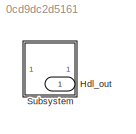
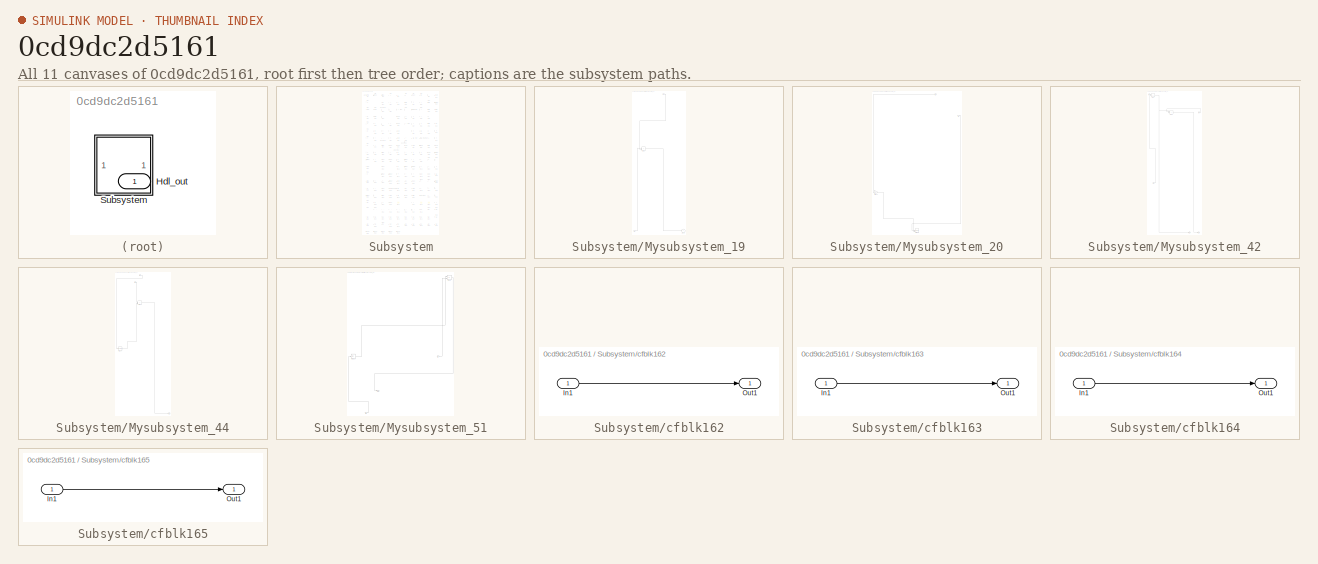
[diagram: thumbnail index - all 11 canvases of the model, root first then tree order]
MODEL slx_0cd9dc2d5161
KIND model
CONFIG AbsTol = auto
CONFIG EnableMultiTasking = off
CONFIG FixedStep = auto
CONFIG MaxStep = auto
CONFIG MinStep = auto
CONFIG RelTol = 1e-3
CONFIG SampleTimeConstraint = Unconstrained
CONFIG SolverName = VariableStepAuto
CONFIG StartTime = 0.0
CONFIG StopTime = 10.0
BLOCK [Outport] Hdl_out
  OutDataTypeStr = uint8
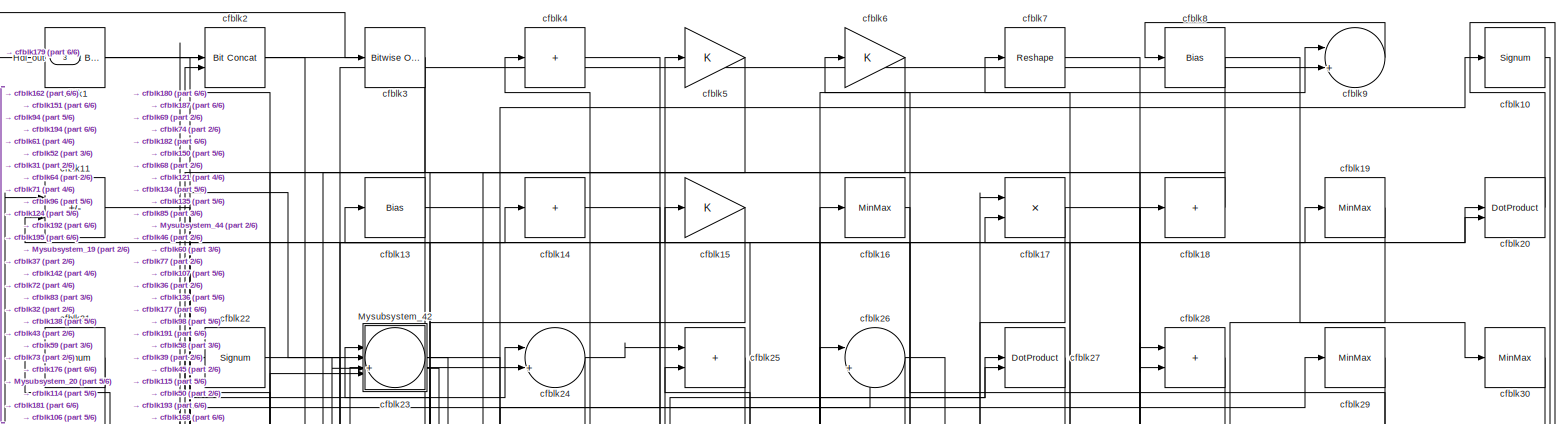
[diagram: Subsystem - part 1/6, full width, top band]
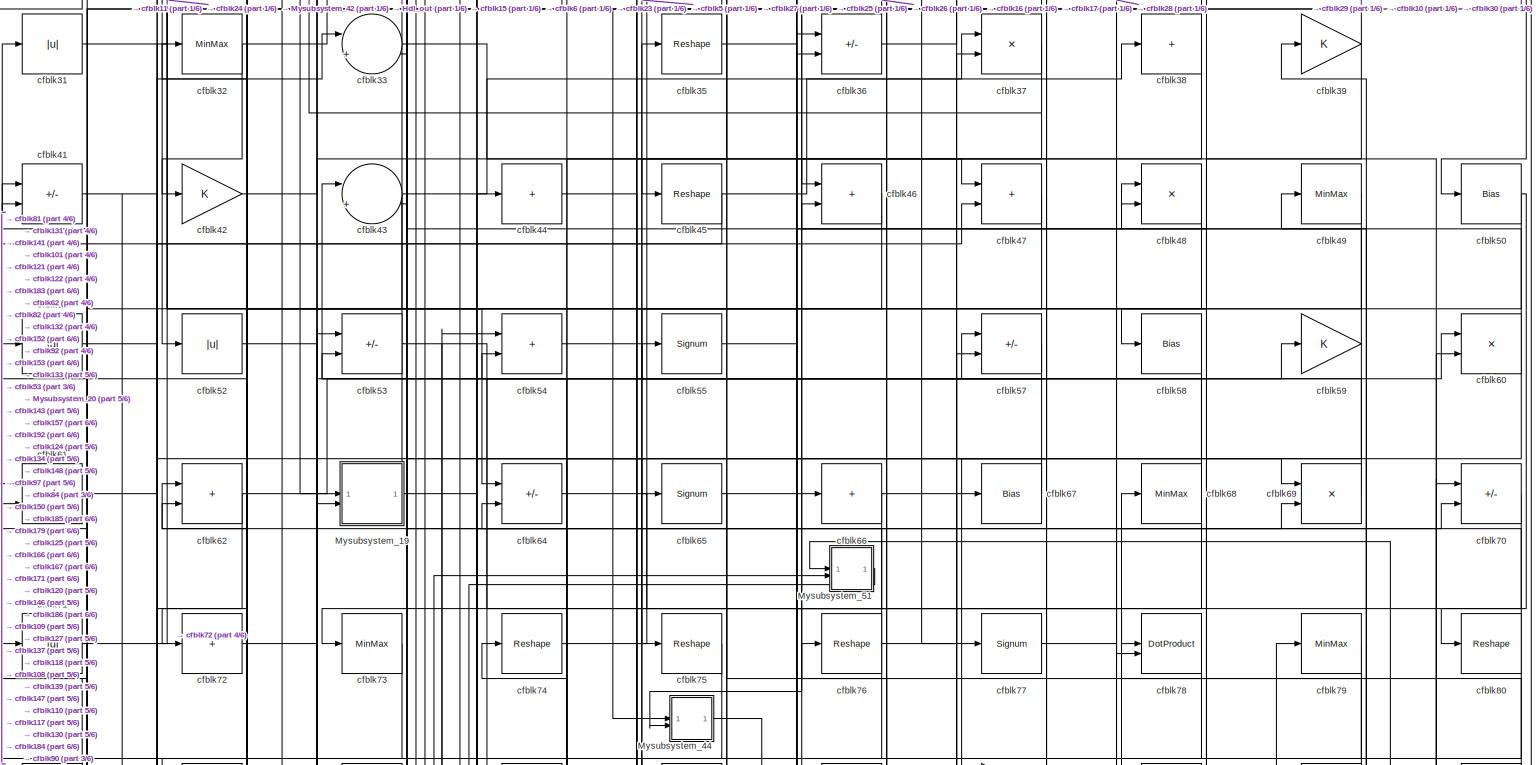
[diagram: Subsystem - part 2/6, full width, top band]
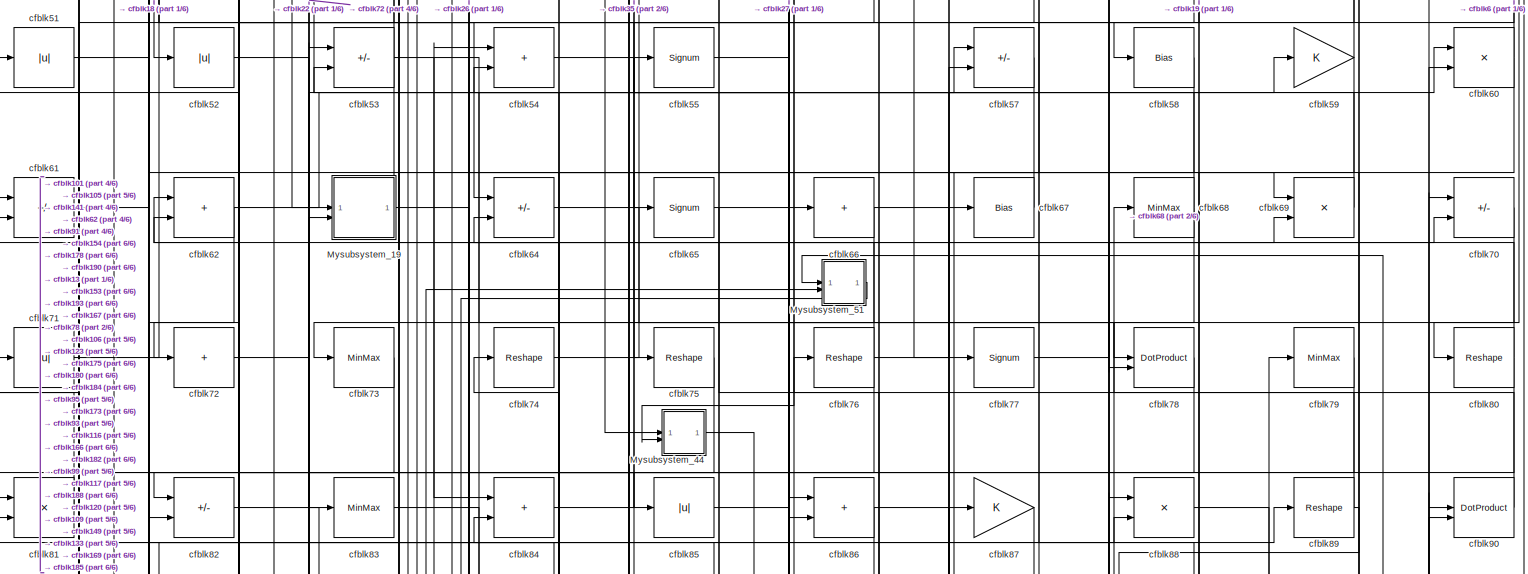
[diagram: Subsystem - part 3/6, full width, middle band]
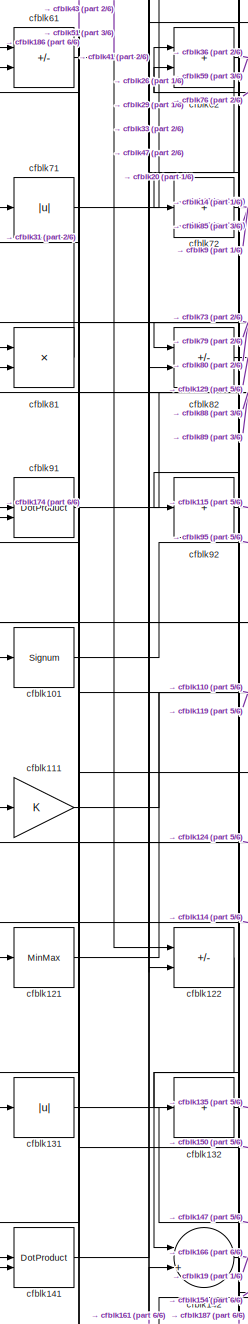
[diagram: Subsystem - part 4/6, middle left region]
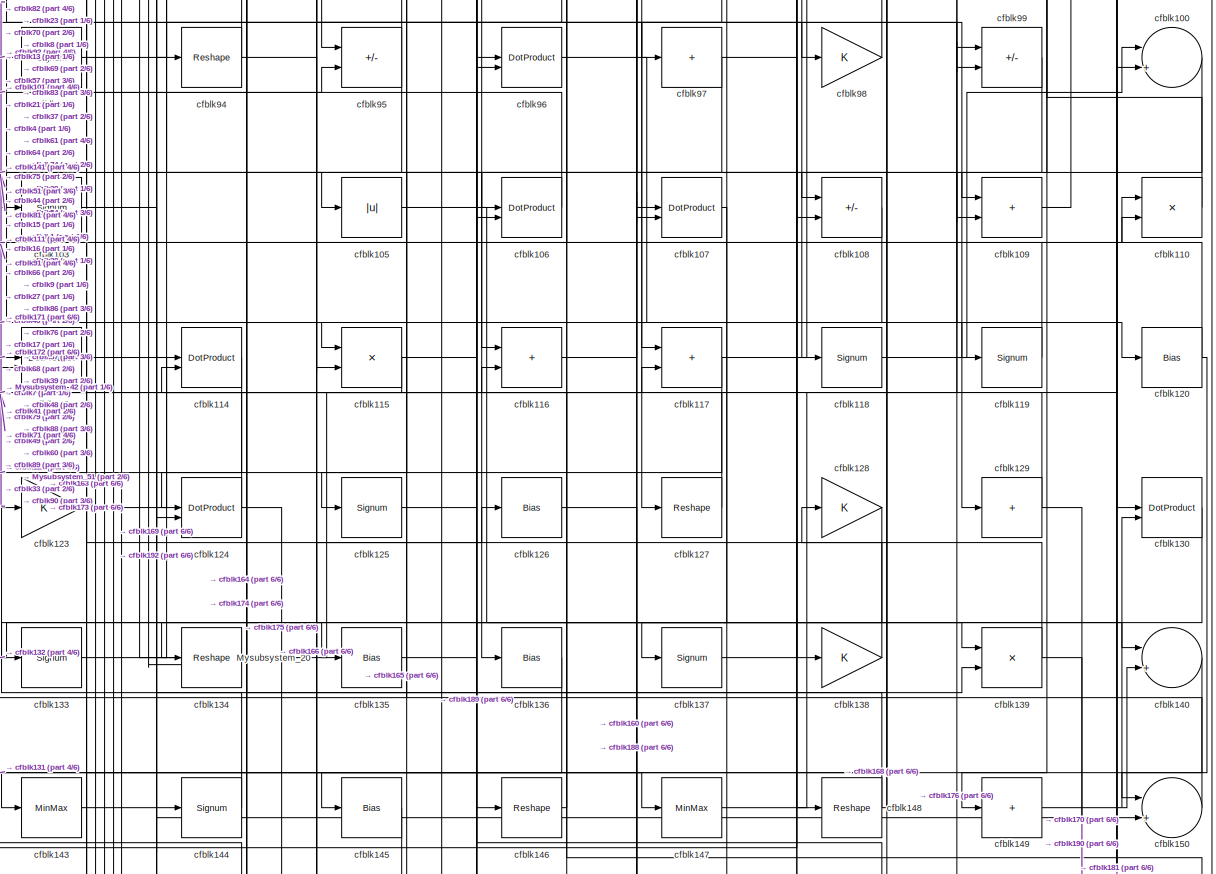
[diagram: Subsystem - part 5/6, full width, middle band]
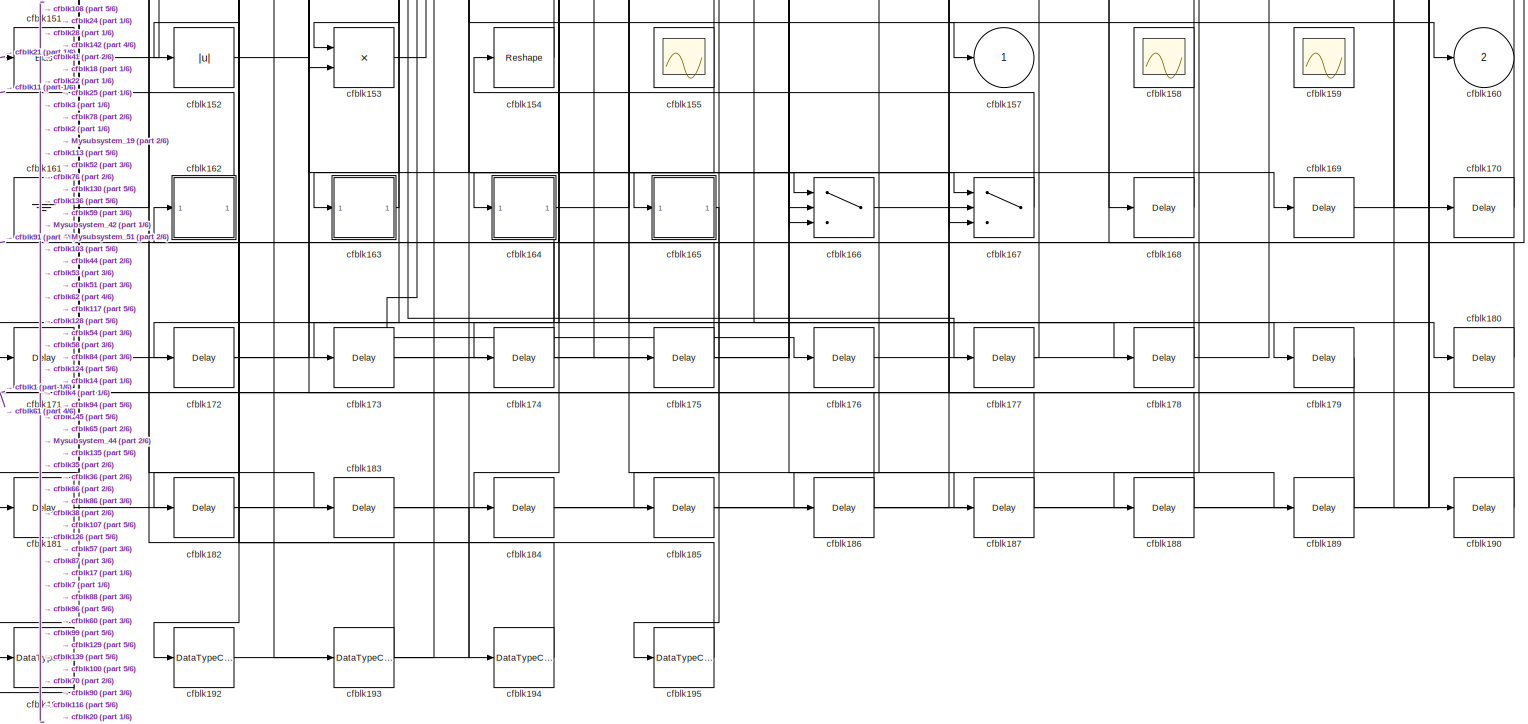
[diagram: Subsystem - part 6/6, full width, bottom band]
BLOCK [SubSystem] Subsystem
BLOCK [Outport] Subsystem/Hdl_out
  OutDataTypeStr = uint8
  Port = 3
BLOCK [SubSystem] Subsystem/Mysubsystem_19
  RTWFcnName = Mysubsystem_19
  RTWFcnNameOpts = User specified
  RTWFileNameOpts = Use function name
  RTWSystemCode = Reusable function
  TreatAsAtomicUnit = on
BLOCK [Inport] Subsystem/Mysubsystem_19/In1
BLOCK [Inport] Subsystem/Mysubsystem_19/In2
  Port = 2
BLOCK [Outport] Subsystem/Mysubsystem_19/cfblk157
  VectorParamsAs1DForOutWhenUnconnected = off
BLOCK [Sum] Subsystem/Mysubsystem_19/cfblk63
  IconShape = rectangular
BLOCK [SubSystem] Subsystem/Mysubsystem_20
  RTWFcnName = Mysubsystem_20
  RTWFcnNameOpts = User specified
  RTWFileNameOpts = Use function name
  RTWSystemCode = Reusable function
  TreatAsAtomicUnit = on
BLOCK [Inport] Subsystem/Mysubsystem_20/In1
BLOCK [Inport] Subsystem/Mysubsystem_20/In2
  Port = 2
BLOCK [Gain] Subsystem/Mysubsystem_20/cfblk112
BLOCK [Record] Subsystem/Mysubsystem_20/cfblk156
  CompatibilityTag = XY
  FileSettingsInternal = {"entries":[{"content":{"excelSettings":{"content":{},"type":"Streamout.ExcelSettings"}},"type":"Streamout.FileSettingStorage","uuid":""}],"packageUris":["http:\/\/schema.mathworks.com\/mf0\/streamout_blocks\/R2020a"],"version":"1.0"}
  Layout = [1 1]
  SignalsInternal = {"entries":[{"content":{},"type":"RecordBlkView.InputSignals","uuid":""}],"packageUris":["http:\/\/schema.mathworks.com\/mf0\/streamout_blocks\/R2020a"],"version":"1.0"}
  VisualizationBindings = {"xyplotplugin":{"info":[{"series":[],"subplotID":1}]}}
  st = -1
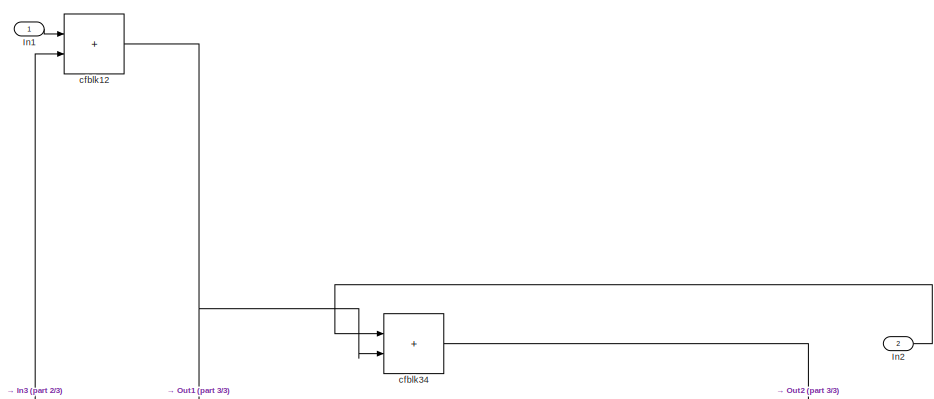
[diagram: Subsystem/Mysubsystem_42 - part 1/3, full width, top band]
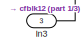
[diagram: Subsystem/Mysubsystem_42 - part 2/3, middle left region]
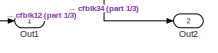
[diagram: Subsystem/Mysubsystem_42 - part 3/3, bottom right region]
BLOCK [SubSystem] Subsystem/Mysubsystem_42
  RTWFcnName = Mysubsystem_42
  RTWFcnNameOpts = User specified
  RTWFileNameOpts = Use function name
  RTWSystemCode = Reusable function
  TreatAsAtomicUnit = on
BLOCK [Inport] Subsystem/Mysubsystem_42/In1
BLOCK [Inport] Subsystem/Mysubsystem_42/In2
  Port = 2
BLOCK [Inport] Subsystem/Mysubsystem_42/In3
  Port = 3
BLOCK [Outport] Subsystem/Mysubsystem_42/Out1
BLOCK [Outport] Subsystem/Mysubsystem_42/Out2
  Port = 2
BLOCK [Sum] Subsystem/Mysubsystem_42/cfblk12
  IconShape = rectangular
BLOCK [Sum] Subsystem/Mysubsystem_42/cfblk34
  IconShape = rectangular
BLOCK [SubSystem] Subsystem/Mysubsystem_44
  RTWFcnName = Mysubsystem_44
  RTWFcnNameOpts = User specified
  RTWFileNameOpts = Use function name
  RTWSystemCode = Reusable function
  TreatAsAtomicUnit = on
BLOCK [Inport] Subsystem/Mysubsystem_44/In1
BLOCK [Inport] Subsystem/Mysubsystem_44/In2
  Port = 2
BLOCK [Outport] Subsystem/Mysubsystem_44/Out1
BLOCK [Reshape] Subsystem/Mysubsystem_44/cfblk104
BLOCK [Sum] Subsystem/Mysubsystem_44/cfblk56
  IconShape = rectangular
BLOCK [SubSystem] Subsystem/Mysubsystem_51
  RTWFcnName = Mysubsystem_51
  RTWFcnNameOpts = User specified
  RTWFileNameOpts = Use function name
  RTWSystemCode = Reusable function
  TreatAsAtomicUnit = on
BLOCK [Inport] Subsystem/Mysubsystem_51/In1
BLOCK [Inport] Subsystem/Mysubsystem_51/In2
  Port = 2
BLOCK [Outport] Subsystem/Mysubsystem_51/Out1
BLOCK [Abs] Subsystem/Mysubsystem_51/cfblk102
  SaturateOnIntegerOverflow = off
BLOCK [Sum] Subsystem/Mysubsystem_51/cfblk40
  IconShape = rectangular
  Inputs = +-
BLOCK [Reference] Subsystem/cfblk1  REF=simulink/Logic and Bit
Operations/Extract Bits
  LibrarySourceBlock = hdlsllib/Logic and Bit\nOperations/Extract Bits
  SourceBlock = simulink/Logic and Bit\nOperations/Extract Bits
  SourceType = Extract Bits
BLOCK [Signum] Subsystem/cfblk10
BLOCK [Sum] Subsystem/cfblk100
  Inputs = |++
  OutDataTypeStr = uint8
BLOCK [Signum] Subsystem/cfblk101
BLOCK [Signum] Subsystem/cfblk103
BLOCK [Abs] Subsystem/cfblk105
  OutDataTypeStr = uint8
  SaturateOnIntegerOverflow = off
BLOCK [DotProduct] Subsystem/cfblk106
  OutDataTypeStr = uint8
BLOCK [DotProduct] Subsystem/cfblk107
  OutDataTypeStr = uint8
BLOCK [Sum] Subsystem/cfblk108
  IconShape = rectangular
  Inputs = +-
  OutDataTypeStr = uint8
BLOCK [Sum] Subsystem/cfblk109
  IconShape = rectangular
  OutDataTypeStr = uint8
BLOCK [Sum] Subsystem/cfblk11
  IconShape = rectangular
  Inputs = +-
  OutDataTypeStr = uint8
BLOCK [Product] Subsystem/cfblk110
  Inputs = */
  OutDataTypeStr = uint8
  RndMeth = Zero
  SaturateOnIntegerOverflow = on
BLOCK [Gain] Subsystem/cfblk111
  OutDataTypeStr = uint8
BLOCK [DotProduct] Subsystem/cfblk113
  OutDataTypeStr = uint8
BLOCK [DotProduct] Subsystem/cfblk114
  OutDataTypeStr = uint8
BLOCK [Product] Subsystem/cfblk115
  Inputs = */
  OutDataTypeStr = uint8
  RndMeth = Zero
  SaturateOnIntegerOverflow = on
BLOCK [Sum] Subsystem/cfblk116
  IconShape = rectangular
  OutDataTypeStr = uint8
BLOCK [Sum] Subsystem/cfblk117
  IconShape = rectangular
  OutDataTypeStr = uint8
BLOCK [Signum] Subsystem/cfblk118
BLOCK [Signum] Subsystem/cfblk119
BLOCK [Bias] Subsystem/cfblk120
  Bias = 0.0
  SaturateOnIntegerOverflow = off
BLOCK [MinMax] Subsystem/cfblk121
  OutDataTypeStr = uint8
BLOCK [Sum] Subsystem/cfblk122
  IconShape = rectangular
  Inputs = +-
  OutDataTypeStr = uint8
BLOCK [Gain] Subsystem/cfblk123
  OutDataTypeStr = uint8
BLOCK [DotProduct] Subsystem/cfblk124
  OutDataTypeStr = uint8
BLOCK [Signum] Subsystem/cfblk125
BLOCK [Bias] Subsystem/cfblk126
  Bias = 0.0
  SaturateOnIntegerOverflow = off
BLOCK [Reshape] Subsystem/cfblk127
BLOCK [Gain] Subsystem/cfblk128
  OutDataTypeStr = uint8
BLOCK [Sum] Subsystem/cfblk129
  IconShape = rectangular
  Inputs = +
  OutDataTypeStr = uint8
BLOCK [Bias] Subsystem/cfblk13
  Bias = 0.0
  SaturateOnIntegerOverflow = off
BLOCK [DotProduct] Subsystem/cfblk130
  OutDataTypeStr = uint8
BLOCK [Abs] Subsystem/cfblk131
  OutDataTypeStr = uint8
  SaturateOnIntegerOverflow = off
BLOCK [Sum] Subsystem/cfblk132
  IconShape = rectangular
  Inputs = +
  OutDataTypeStr = uint8
BLOCK [Signum] Subsystem/cfblk133
BLOCK [Reshape] Subsystem/cfblk134
BLOCK [Bias] Subsystem/cfblk135
  Bias = 0.0
  SaturateOnIntegerOverflow = off
BLOCK [Bias] Subsystem/cfblk136
  Bias = 0.0
  SaturateOnIntegerOverflow = off
BLOCK [Signum] Subsystem/cfblk137
BLOCK [Gain] Subsystem/cfblk138
  OutDataTypeStr = uint8
BLOCK [Product] Subsystem/cfblk139
  Inputs = */
  OutDataTypeStr = uint8
  RndMeth = Zero
  SaturateOnIntegerOverflow = on
BLOCK [Sum] Subsystem/cfblk14
  IconShape = rectangular
  Inputs = +
  OutDataTypeStr = uint8
BLOCK [Sum] Subsystem/cfblk140
  Inputs = |++
  OutDataTypeStr = uint8
BLOCK [DotProduct] Subsystem/cfblk141
  OutDataTypeStr = uint8
BLOCK [Sum] Subsystem/cfblk142
  Inputs = |++
  OutDataTypeStr = uint8
BLOCK [MinMax] Subsystem/cfblk143
  OutDataTypeStr = uint8
BLOCK [Signum] Subsystem/cfblk144
BLOCK [Bias] Subsystem/cfblk145
  Bias = 0.0
  SaturateOnIntegerOverflow = off
BLOCK [Reshape] Subsystem/cfblk146
BLOCK [MinMax] Subsystem/cfblk147
  OutDataTypeStr = uint8
BLOCK [Reshape] Subsystem/cfblk148
BLOCK [Sum] Subsystem/cfblk149
  IconShape = rectangular
  Inputs = +
  OutDataTypeStr = uint8
BLOCK [Gain] Subsystem/cfblk15
  OutDataTypeStr = uint8
BLOCK [Sum] Subsystem/cfblk150
  Inputs = |++
  OutDataTypeStr = uint8
BLOCK [Bias] Subsystem/cfblk151
  Bias = 0.0
  SaturateOnIntegerOverflow = off
BLOCK [Abs] Subsystem/cfblk152
  OutDataTypeStr = uint8
  SaturateOnIntegerOverflow = off
BLOCK [Product] Subsystem/cfblk153
  Inputs = */
  OutDataTypeStr = uint8
  RndMeth = Zero
  SaturateOnIntegerOverflow = on
BLOCK [Reshape] Subsystem/cfblk154
BLOCK [Scope] Subsystem/cfblk155
  Floating = on
  NumInputPorts = 1
  ScopeSpecificationString = Simulink.scopes.TimeScopeBlockCfg('CurrentConfiguration', extmgr.ConfigurationSet(extmgr.Configuration('Core','General UI',true,'FigureColor',[0.156862745098039 0.156862745098039 0.156862745098039]),extmgr.Configuration('Core','Source UI',true),extmgr.Configuration('Sources','WiredSimulink',true,'DataLoggingVariableName','ScopeData1','DataLoggingSaveFormat','StructureWithTime','DataLoggingLimitDat...<+2713ch>
BLOCK [Outport] Subsystem/cfblk157
  OutDataTypeStr = uint8
  VectorParamsAs1DForOutWhenUnconnected = off
BLOCK [Scope] Subsystem/cfblk158
  Floating = on
  NumInputPorts = 1
  ScopeSpecificationString = Simulink.scopes.TimeScopeBlockCfg('CurrentConfiguration', extmgr.ConfigurationSet(extmgr.Configuration('Core','General UI',true,'FigureColor',[0.156862745098039 0.156862745098039 0.156862745098039]),extmgr.Configuration('Core','Source UI',true),extmgr.Configuration('Sources','WiredSimulink',true,'DataLoggingVariableName','ScopeData2','DataLoggingSaveFormat','StructureWithTime','DataLoggingLimitDat...<+2713ch>
BLOCK [Scope] Subsystem/cfblk159
  Floating = on
  NumInputPorts = 1
  ScopeSpecificationString = Simulink.scopes.TimeScopeBlockCfg('CurrentConfiguration', extmgr.ConfigurationSet(extmgr.Configuration('Core','General UI',true,'FigureColor',[0.156862745098039 0.156862745098039 0.156862745098039]),extmgr.Configuration('Core','Source UI',true),extmgr.Configuration('Sources','WiredSimulink',true,'DataLoggingSaveFormat','StructureWithTime','DataLoggingLimitDataPoints',true,'DataLoggingDecimation','...<+2674ch>
BLOCK [MinMax] Subsystem/cfblk16
  OutDataTypeStr = uint8
BLOCK [Outport] Subsystem/cfblk160
  OutDataTypeStr = uint8
  Port = 2
  VectorParamsAs1DForOutWhenUnconnected = off
BLOCK [Ground] Subsystem/cfblk161
BLOCK [SubSystem] Subsystem/cfblk162
  LibrarySourceBlock = hdlsllib/Ports &\nSubsystems/Subsystem
BLOCK [Inport] Subsystem/cfblk162/In1
BLOCK [Outport] Subsystem/cfblk162/Out1
BLOCK [SubSystem] Subsystem/cfblk163
  LibrarySourceBlock = hdlsllib/Ports &\nSubsystems/Subsystem
BLOCK [Inport] Subsystem/cfblk163/In1
BLOCK [Outport] Subsystem/cfblk163/Out1
BLOCK [SubSystem] Subsystem/cfblk164
  LibrarySourceBlock = hdlsllib/Ports &\nSubsystems/Subsystem
BLOCK [Inport] Subsystem/cfblk164/In1
BLOCK [Outport] Subsystem/cfblk164/Out1
BLOCK [SubSystem] Subsystem/cfblk165
  LibrarySourceBlock = hdlsllib/Ports &\nSubsystems/Subsystem
BLOCK [Inport] Subsystem/cfblk165/In1
BLOCK [Outport] Subsystem/cfblk165/Out1
BLOCK [Switch] Subsystem/cfblk166
  InputSameDT = off
  OutDataTypeStr = uint8
  SaturateOnIntegerOverflow = off
BLOCK [Switch] Subsystem/cfblk167
  InputSameDT = off
  OutDataTypeStr = uint8
  SaturateOnIntegerOverflow = off
BLOCK [Delay] Subsystem/cfblk168
  InputPortMap = u0
  SampleTime = 1
BLOCK [Delay] Subsystem/cfblk169
  InputPortMap = u0
  SampleTime = 1
BLOCK [Product] Subsystem/cfblk17
  Inputs = */
  OutDataTypeStr = uint8
  RndMeth = Zero
  SaturateOnIntegerOverflow = on
BLOCK [Delay] Subsystem/cfblk170
  InputPortMap = u0
  SampleTime = 1
BLOCK [Delay] Subsystem/cfblk171
  InputPortMap = u0
  SampleTime = 1
BLOCK [Delay] Subsystem/cfblk172
  InputPortMap = u0
  SampleTime = 1
BLOCK [Delay] Subsystem/cfblk173
  InputPortMap = u0
  SampleTime = 1
BLOCK [Delay] Subsystem/cfblk174
  InputPortMap = u0
  SampleTime = 1
BLOCK [Delay] Subsystem/cfblk175
  InputPortMap = u0
  SampleTime = 1
BLOCK [Delay] Subsystem/cfblk176
  InputPortMap = u0
  SampleTime = 1
BLOCK [Delay] Subsystem/cfblk177
  InputPortMap = u0
  SampleTime = 1
BLOCK [Delay] Subsystem/cfblk178
  InputPortMap = u0
  SampleTime = 1
BLOCK [Delay] Subsystem/cfblk179
  InputPortMap = u0
  SampleTime = 1
BLOCK [Sum] Subsystem/cfblk18
  IconShape = rectangular
  Inputs = +
  OutDataTypeStr = uint8
BLOCK [Delay] Subsystem/cfblk180
  InputPortMap = u0
  SampleTime = 1
BLOCK [Delay] Subsystem/cfblk181
  InputPortMap = u0
  SampleTime = 1
BLOCK [Delay] Subsystem/cfblk182
  InputPortMap = u0
  SampleTime = 1
BLOCK [Delay] Subsystem/cfblk183
  InputPortMap = u0
  SampleTime = 1
BLOCK [Delay] Subsystem/cfblk184
  InputPortMap = u0
  SampleTime = 1
BLOCK [Delay] Subsystem/cfblk185
  InputPortMap = u0
  SampleTime = 1
BLOCK [Delay] Subsystem/cfblk186
  InputPortMap = u0
  SampleTime = 1
BLOCK [Delay] Subsystem/cfblk187
  InputPortMap = u0
  SampleTime = 1
BLOCK [Delay] Subsystem/cfblk188
  InputPortMap = u0
  SampleTime = 1
BLOCK [Delay] Subsystem/cfblk189
  InputPortMap = u0
  SampleTime = 1
BLOCK [MinMax] Subsystem/cfblk19
  OutDataTypeStr = uint8
BLOCK [Delay] Subsystem/cfblk190
  InputPortMap = u0
  SampleTime = 1
BLOCK [DataTypeConversion] Subsystem/cfblk191
  OutDataTypeStr = uint8
  RndMeth = Floor
  SaturateOnIntegerOverflow = off
BLOCK [DataTypeConversion] Subsystem/cfblk192
  OutDataTypeStr = uint8
  RndMeth = Floor
  SaturateOnIntegerOverflow = off
BLOCK [DataTypeConversion] Subsystem/cfblk193
  OutDataTypeStr = uint8
  RndMeth = Floor
  SaturateOnIntegerOverflow = off
BLOCK [DataTypeConversion] Subsystem/cfblk194
  OutDataTypeStr = uint8
  RndMeth = Floor
  SaturateOnIntegerOverflow = off
BLOCK [DataTypeConversion] Subsystem/cfblk195
  OutDataTypeStr = uint8
  RndMeth = Floor
  SaturateOnIntegerOverflow = off
BLOCK [Reference] Subsystem/cfblk2  REF=hdlsllib/Logic and Bit
Operations/Bit Concat
  SourceBlock = hdlsllib/Logic and Bit\nOperations/Bit Concat
  SourceType = Bit Concat
BLOCK [DotProduct] Subsystem/cfblk20
  OutDataTypeStr = uint8
BLOCK [Signum] Subsystem/cfblk21
BLOCK [Signum] Subsystem/cfblk22
BLOCK [Sum] Subsystem/cfblk23
  Inputs = |++
  OutDataTypeStr = uint8
BLOCK [Sum] Subsystem/cfblk24
  Inputs = |++
  OutDataTypeStr = uint8
BLOCK [Sum] Subsystem/cfblk25
  IconShape = rectangular
  OutDataTypeStr = uint8
BLOCK [Sum] Subsystem/cfblk26
  Inputs = |++
  OutDataTypeStr = uint8
BLOCK [DotProduct] Subsystem/cfblk27
  OutDataTypeStr = uint8
BLOCK [Sum] Subsystem/cfblk28
  IconShape = rectangular
  OutDataTypeStr = uint8
BLOCK [MinMax] Subsystem/cfblk29
  OutDataTypeStr = uint8
BLOCK [Reference] Subsystem/cfblk3  REF=simulink/Logic and Bit
Operations/Bitwise
Operator
  LibrarySourceBlock = hdlsllib/Logic and Bit\nOperations/Bitwise\nOperator
  SourceBlock = simulink/Logic and Bit\nOperations/Bitwise\nOperator
  SourceType = Bitwise Operator
BLOCK [MinMax] Subsystem/cfblk30
  OutDataTypeStr = uint8
BLOCK [Abs] Subsystem/cfblk31
  OutDataTypeStr = uint8
  SaturateOnIntegerOverflow = off
BLOCK [MinMax] Subsystem/cfblk32
  OutDataTypeStr = uint8
BLOCK [Sum] Subsystem/cfblk33
  Inputs = |++
  OutDataTypeStr = uint8
BLOCK [Reshape] Subsystem/cfblk35
BLOCK [Sum] Subsystem/cfblk36
  IconShape = rectangular
  Inputs = +-
  OutDataTypeStr = uint8
BLOCK [Product] Subsystem/cfblk37
  Inputs = */
  OutDataTypeStr = uint8
  RndMeth = Zero
  SaturateOnIntegerOverflow = on
BLOCK [Sum] Subsystem/cfblk38
  IconShape = rectangular
  Inputs = +
  OutDataTypeStr = uint8
BLOCK [Gain] Subsystem/cfblk39
  OutDataTypeStr = uint8
BLOCK [Sum] Subsystem/cfblk4
  IconShape = rectangular
  Inputs = +
  OutDataTypeStr = uint8
BLOCK [Sum] Subsystem/cfblk41
  IconShape = rectangular
  Inputs = +-
  OutDataTypeStr = uint8
BLOCK [Gain] Subsystem/cfblk42
  OutDataTypeStr = uint8
BLOCK [Sum] Subsystem/cfblk43
  Inputs = |++
  OutDataTypeStr = uint8
BLOCK [Sum] Subsystem/cfblk44
  IconShape = rectangular
  Inputs = +
  OutDataTypeStr = uint8
BLOCK [Reshape] Subsystem/cfblk45
BLOCK [Sum] Subsystem/cfblk46
  IconShape = rectangular
  OutDataTypeStr = uint8
BLOCK [Sum] Subsystem/cfblk47
  IconShape = rectangular
  OutDataTypeStr = uint8
BLOCK [Product] Subsystem/cfblk48
  Inputs = */
  OutDataTypeStr = uint8
  RndMeth = Zero
  SaturateOnIntegerOverflow = on
BLOCK [MinMax] Subsystem/cfblk49
  OutDataTypeStr = uint8
BLOCK [Gain] Subsystem/cfblk5
  OutDataTypeStr = uint8
BLOCK [Bias] Subsystem/cfblk50
  Bias = 0.0
  SaturateOnIntegerOverflow = off
BLOCK [Abs] Subsystem/cfblk51
  OutDataTypeStr = uint8
  SaturateOnIntegerOverflow = off
BLOCK [Abs] Subsystem/cfblk52
  OutDataTypeStr = uint8
  SaturateOnIntegerOverflow = off
BLOCK [Sum] Subsystem/cfblk53
  IconShape = rectangular
  Inputs = +-
  OutDataTypeStr = uint8
BLOCK [Sum] Subsystem/cfblk54
  IconShape = rectangular
  OutDataTypeStr = uint8
BLOCK [Signum] Subsystem/cfblk55
BLOCK [Sum] Subsystem/cfblk57
  IconShape = rectangular
  Inputs = +-
  OutDataTypeStr = uint8
BLOCK [Bias] Subsystem/cfblk58
  Bias = 0.0
  SaturateOnIntegerOverflow = off
BLOCK [Gain] Subsystem/cfblk59
  OutDataTypeStr = uint8
BLOCK [Gain] Subsystem/cfblk6
  OutDataTypeStr = uint8
BLOCK [Product] Subsystem/cfblk60
  Inputs = */
  OutDataTypeStr = uint8
  RndMeth = Zero
  SaturateOnIntegerOverflow = on
BLOCK [Sum] Subsystem/cfblk61
  IconShape = rectangular
  Inputs = +-
  OutDataTypeStr = uint8
BLOCK [Sum] Subsystem/cfblk62
  IconShape = rectangular
  OutDataTypeStr = uint8
BLOCK [Sum] Subsystem/cfblk64
  IconShape = rectangular
  Inputs = +-
  OutDataTypeStr = uint8
BLOCK [Signum] Subsystem/cfblk65
BLOCK [Sum] Subsystem/cfblk66
  IconShape = rectangular
  Inputs = +
  OutDataTypeStr = uint8
BLOCK [Bias] Subsystem/cfblk67
  Bias = 0.0
  SaturateOnIntegerOverflow = off
BLOCK [MinMax] Subsystem/cfblk68
  OutDataTypeStr = uint8
BLOCK [Product] Subsystem/cfblk69
  Inputs = */
  OutDataTypeStr = uint8
  RndMeth = Zero
  SaturateOnIntegerOverflow = on
BLOCK [Reshape] Subsystem/cfblk7
BLOCK [Sum] Subsystem/cfblk70
  IconShape = rectangular
  Inputs = +-
  OutDataTypeStr = uint8
BLOCK [Abs] Subsystem/cfblk71
  OutDataTypeStr = uint8
  SaturateOnIntegerOverflow = off
BLOCK [Sum] Subsystem/cfblk72
  IconShape = rectangular
  Inputs = +
  OutDataTypeStr = uint8
BLOCK [MinMax] Subsystem/cfblk73
  OutDataTypeStr = uint8
BLOCK [Reshape] Subsystem/cfblk74
BLOCK [Reshape] Subsystem/cfblk75
BLOCK [Reshape] Subsystem/cfblk76
BLOCK [Signum] Subsystem/cfblk77
BLOCK [DotProduct] Subsystem/cfblk78
  OutDataTypeStr = uint8
BLOCK [MinMax] Subsystem/cfblk79
  OutDataTypeStr = uint8
BLOCK [Bias] Subsystem/cfblk8
  Bias = 0.0
  SaturateOnIntegerOverflow = off
BLOCK [Reshape] Subsystem/cfblk80
BLOCK [Product] Subsystem/cfblk81
  Inputs = */
  OutDataTypeStr = uint8
  RndMeth = Zero
  SaturateOnIntegerOverflow = on
BLOCK [Sum] Subsystem/cfblk82
  IconShape = rectangular
  Inputs = +-
  OutDataTypeStr = uint8
BLOCK [MinMax] Subsystem/cfblk83
  OutDataTypeStr = uint8
BLOCK [Sum] Subsystem/cfblk84
  IconShape = rectangular
  OutDataTypeStr = uint8
BLOCK [Abs] Subsystem/cfblk85
  OutDataTypeStr = uint8
  SaturateOnIntegerOverflow = off
BLOCK [Sum] Subsystem/cfblk86
  IconShape = rectangular
  OutDataTypeStr = uint8
BLOCK [Gain] Subsystem/cfblk87
  OutDataTypeStr = uint8
BLOCK [Product] Subsystem/cfblk88
  Inputs = */
  OutDataTypeStr = uint8
  RndMeth = Zero
  SaturateOnIntegerOverflow = on
BLOCK [Reshape] Subsystem/cfblk89
BLOCK [Sum] Subsystem/cfblk9
  Inputs = |++
  OutDataTypeStr = uint8
BLOCK [DotProduct] Subsystem/cfblk90
  OutDataTypeStr = uint8
BLOCK [DotProduct] Subsystem/cfblk91
  OutDataTypeStr = uint8
BLOCK [Sum] Subsystem/cfblk92
  IconShape = rectangular
  Inputs = +
  OutDataTypeStr = uint8
BLOCK [Signum] Subsystem/cfblk93
BLOCK [Reshape] Subsystem/cfblk94
BLOCK [Sum] Subsystem/cfblk95
  IconShape = rectangular
  Inputs = +-
  OutDataTypeStr = uint8
BLOCK [DotProduct] Subsystem/cfblk96
  OutDataTypeStr = uint8
BLOCK [Sum] Subsystem/cfblk97
  IconShape = rectangular
  Inputs = +
  OutDataTypeStr = uint8
BLOCK [Gain] Subsystem/cfblk98
  OutDataTypeStr = uint8
BLOCK [Sum] Subsystem/cfblk99
  IconShape = rectangular
  Inputs = +-
  OutDataTypeStr = uint8
LINE Subsystem/Mysubsystem_19/In1:1 -> Subsystem/Mysubsystem_19/cfblk63:2
LINE Subsystem/Mysubsystem_19/In2:1 -> Subsystem/Mysubsystem_19/cfblk63:1
LINE Subsystem/Mysubsystem_19/cfblk63:1 -> Subsystem/Mysubsystem_19/cfblk157:1
NET Subsystem/Mysubsystem_19:1 -> Subsystem/Hdl_out:1, Subsystem/cfblk157:1
LINE Subsystem/Mysubsystem_20/In1:1 -> Subsystem/Mysubsystem_20/cfblk112:1
LINE Subsystem/Mysubsystem_20/In2:1 -> Subsystem/Mysubsystem_20/cfblk156:1
LINE Subsystem/Mysubsystem_20/cfblk112:1 -> Subsystem/Mysubsystem_20/cfblk156:2
LINE Subsystem/Mysubsystem_42/In1:1 -> Subsystem/Mysubsystem_42/cfblk12:1
LINE Subsystem/Mysubsystem_42/In2:1 -> Subsystem/Mysubsystem_42/cfblk34:1
LINE Subsystem/Mysubsystem_42/In3:1 -> Subsystem/Mysubsystem_42/cfblk12:2
NET Subsystem/Mysubsystem_42/cfblk12:1 -> Subsystem/Mysubsystem_42/Out1:1, Subsystem/Mysubsystem_42/cfblk34:2
LINE Subsystem/Mysubsystem_42/cfblk34:1 -> Subsystem/Mysubsystem_42/Out2:1
LINE Subsystem/Mysubsystem_42:1 -> Subsystem/cfblk176:1
LINE Subsystem/Mysubsystem_42:2 -> Subsystem/cfblk177:1
LINE Subsystem/Mysubsystem_44/In1:1 -> Subsystem/Mysubsystem_44/cfblk104:1
LINE Subsystem/Mysubsystem_44/In2:1 -> Subsystem/Mysubsystem_44/cfblk56:1
LINE Subsystem/Mysubsystem_44/cfblk104:1 -> Subsystem/Mysubsystem_44/cfblk56:2
LINE Subsystem/Mysubsystem_44/cfblk56:1 -> Subsystem/Mysubsystem_44/Out1:1
LINE Subsystem/Mysubsystem_44:1 -> Subsystem/cfblk179:1
LINE Subsystem/Mysubsystem_51/In1:1 -> Subsystem/Mysubsystem_51/cfblk40:2
LINE Subsystem/Mysubsystem_51/In2:1 -> Subsystem/Mysubsystem_51/cfblk102:1
LINE Subsystem/Mysubsystem_51/cfblk102:1 -> Subsystem/Mysubsystem_51/cfblk40:1
LINE Subsystem/Mysubsystem_51/cfblk40:1 -> Subsystem/Mysubsystem_51/Out1:1
LINE Subsystem/Mysubsystem_51:1 -> Subsystem/Mysubsystem_20:2
NET Subsystem/cfblk100:1 -> Subsystem/cfblk116:1, Subsystem/cfblk125:1
NET Subsystem/cfblk101:1 -> Subsystem/cfblk47:2, Subsystem/cfblk95:2
NET Subsystem/cfblk103:1 -> Subsystem/cfblk110:2, Subsystem/cfblk169:1
LINE Subsystem/cfblk105:1 -> Subsystem/cfblk139:1
NET Subsystem/cfblk106:1 -> Subsystem/cfblk23:2, Subsystem/cfblk4:1
LINE Subsystem/cfblk107:1 -> Subsystem/cfblk137:1
LINE Subsystem/cfblk108:1 -> Subsystem/cfblk171:1
LINE Subsystem/cfblk109:1 -> Subsystem/Mysubsystem_51:1
LINE Subsystem/cfblk10:1 -> Subsystem/cfblk50:1
LINE Subsystem/cfblk110:1 -> Subsystem/cfblk49:1
LINE Subsystem/cfblk111:1 -> Subsystem/cfblk110:1
LINE Subsystem/cfblk113:1 -> Subsystem/cfblk117:2
LINE Subsystem/cfblk114:1 -> Subsystem/cfblk121:1
NET Subsystem/cfblk115:1 -> Subsystem/cfblk114:2, Subsystem/cfblk20:2
LINE Subsystem/cfblk116:1 -> Subsystem/cfblk60:1
NET Subsystem/cfblk117:1 -> Subsystem/cfblk164:1, Subsystem/cfblk39:1
LINE Subsystem/cfblk118:1 -> Subsystem/cfblk100:1
LINE Subsystem/cfblk119:1 -> Subsystem/cfblk91:2
LINE Subsystem/cfblk11:1 -> Subsystem/cfblk64:1
NET Subsystem/cfblk120:1 -> Subsystem/cfblk150:1, Subsystem/cfblk46:2
NET Subsystem/cfblk121:1 -> Subsystem/cfblk26:1, Subsystem/cfblk33:1
LINE Subsystem/cfblk122:1 -> Subsystem/cfblk142:1
LINE Subsystem/cfblk123:1 -> Subsystem/cfblk57:1
NET Subsystem/cfblk124:1 -> Subsystem/Mysubsystem_42:3, Subsystem/cfblk175:1, Subsystem/cfblk71:1
NET Subsystem/cfblk125:1 -> Subsystem/cfblk140:1, Subsystem/cfblk146:1, Subsystem/cfblk48:1
LINE Subsystem/cfblk126:1 -> Subsystem/cfblk160:1
LINE Subsystem/cfblk127:1 -> Subsystem/cfblk41:1
LINE Subsystem/cfblk128:1 -> Subsystem/cfblk174:1
NET Subsystem/cfblk129:1 -> Subsystem/cfblk113:2, Subsystem/cfblk170:1
LINE Subsystem/cfblk130:1 -> Subsystem/cfblk163:1
LINE Subsystem/cfblk131:1 -> Subsystem/cfblk147:1
LINE Subsystem/cfblk132:1 -> Subsystem/cfblk135:1
LINE Subsystem/cfblk133:1 -> Subsystem/cfblk90:2
LINE Subsystem/cfblk134:1 -> Subsystem/cfblk16:1
NET Subsystem/cfblk135:1 -> Subsystem/cfblk189:1, Subsystem/cfblk9:1
LINE Subsystem/cfblk136:1 -> Subsystem/cfblk173:1
LINE Subsystem/cfblk137:1 -> Subsystem/cfblk70:2
LINE Subsystem/cfblk138:1 -> Subsystem/cfblk23:1
NET Subsystem/cfblk139:1 -> Subsystem/cfblk190:1, Subsystem/cfblk48:2
NET Subsystem/cfblk13:1 -> Subsystem/cfblk10:1, Subsystem/cfblk114:1
LINE Subsystem/cfblk140:1 -> Subsystem/cfblk145:1
NET Subsystem/cfblk141:1 -> Subsystem/cfblk111:1, Subsystem/cfblk88:2
NET Subsystem/cfblk142:1 -> Subsystem/cfblk166:3, Subsystem/cfblk19:1
NET Subsystem/cfblk143:1 -> Subsystem/cfblk139:2, Subsystem/cfblk144:1, Subsystem/cfblk150:2, Subsystem/cfblk69:2
LINE Subsystem/cfblk144:1 -> Subsystem/cfblk123:1
LINE Subsystem/cfblk145:1 -> Subsystem/cfblk165:1
LINE Subsystem/cfblk146:1 -> Subsystem/cfblk76:1
LINE Subsystem/cfblk147:1 -> Subsystem/cfblk79:1
NET Subsystem/cfblk148:1 -> Subsystem/cfblk128:1, Subsystem/cfblk74:1
NET Subsystem/cfblk149:1 -> Subsystem/cfblk130:2, Subsystem/cfblk140:2
LINE Subsystem/cfblk14:1 -> Subsystem/cfblk180:1
NET Subsystem/cfblk150:1 -> Subsystem/cfblk15:1, Subsystem/cfblk61:2, Subsystem/cfblk64:2
LINE Subsystem/cfblk151:1 -> Subsystem/cfblk18:1
LINE Subsystem/cfblk152:1 -> Subsystem/Mysubsystem_19:2
LINE Subsystem/cfblk153:1 -> Subsystem/Mysubsystem_51:2
NET Subsystem/cfblk154:1 -> Subsystem/cfblk51:1, Subsystem/cfblk62:1
LINE Subsystem/cfblk15:1 -> Subsystem/cfblk43:2
LINE Subsystem/cfblk161:1 -> Subsystem/cfblk142:2
LINE Subsystem/cfblk162/In1:1 -> Subsystem/cfblk162/Out1:1
LINE Subsystem/cfblk162:1 -> Subsystem/cfblk11:1
LINE Subsystem/cfblk163/In1:1 -> Subsystem/cfblk163/Out1:1
LINE Subsystem/cfblk163:1 -> Subsystem/cfblk103:1
LINE Subsystem/cfblk164/In1:1 -> Subsystem/cfblk164/Out1:1
NET Subsystem/cfblk164:1 -> Subsystem/cfblk126:1, Subsystem/cfblk172:1
LINE Subsystem/cfblk165/In1:1 -> Subsystem/cfblk165/Out1:1
LINE Subsystem/cfblk165:1 -> Subsystem/cfblk195:1
LINE Subsystem/cfblk166:1 -> Subsystem/cfblk87:1
LINE Subsystem/cfblk167:1 -> Subsystem/cfblk154:1
LINE Subsystem/cfblk168:1 -> Subsystem/cfblk96:1
LINE Subsystem/cfblk169:1 -> Subsystem/cfblk90:1
LINE Subsystem/cfblk16:1 -> Subsystem/cfblk46:1
LINE Subsystem/cfblk170:1 -> Subsystem/cfblk116:2
LINE Subsystem/cfblk171:1 -> Subsystem/cfblk36:2
LINE Subsystem/cfblk172:1 -> Subsystem/cfblk113:1
LINE Subsystem/cfblk173:1 -> Subsystem/cfblk86:2
LINE Subsystem/cfblk174:1 -> Subsystem/cfblk91:1
LINE Subsystem/cfblk175:1 -> Subsystem/cfblk84:2
LINE Subsystem/cfblk176:1 -> Subsystem/cfblk99:1
LINE Subsystem/cfblk177:1 -> Subsystem/cfblk17:2
LINE Subsystem/cfblk178:1 -> Subsystem/cfblk88:1
LINE Subsystem/cfblk179:1 -> Subsystem/cfblk1:1
NET Subsystem/cfblk17:1 -> Subsystem/cfblk107:2, Subsystem/cfblk138:1
LINE Subsystem/cfblk180:1 -> Subsystem/cfblk54:2
LINE Subsystem/cfblk181:1 -> Subsystem/cfblk100:2
LINE Subsystem/cfblk182:1 -> Subsystem/cfblk57:2
LINE Subsystem/cfblk183:1 -> Subsystem/cfblk194:1
LINE Subsystem/cfblk184:1 -> Subsystem/cfblk70:1
LINE Subsystem/cfblk185:1 -> Subsystem/cfblk60:2
LINE Subsystem/cfblk186:1 -> Subsystem/cfblk61:1
LINE Subsystem/cfblk187:1 -> Subsystem/cfblk62:2
LINE Subsystem/cfblk188:1 -> Subsystem/cfblk107:1
LINE Subsystem/cfblk189:1 -> Subsystem/cfblk167:2
NET Subsystem/cfblk18:1 -> Subsystem/Mysubsystem_42:1, Subsystem/cfblk52:1
LINE Subsystem/cfblk190:1 -> Subsystem/cfblk53:1
LINE Subsystem/cfblk191:1 -> Subsystem/cfblk3:1
NET Subsystem/cfblk192:1 -> Subsystem/cfblk44:1, Subsystem/cfblk94:1
NET Subsystem/cfblk193:1 -> Subsystem/cfblk22:1, Subsystem/cfblk54:1
LINE Subsystem/cfblk194:1 -> Subsystem/cfblk2:1
LINE Subsystem/cfblk195:1 -> Subsystem/cfblk2:2
LINE Subsystem/cfblk19:1 -> Subsystem/cfblk58:1
LINE Subsystem/cfblk1:1 -> Subsystem/cfblk96:2
LINE Subsystem/cfblk20:1 -> Subsystem/cfblk162:1
LINE Subsystem/cfblk21:1 -> Subsystem/cfblk151:1
LINE Subsystem/cfblk22:1 -> Subsystem/cfblk83:1
LINE Subsystem/cfblk23:1 -> Subsystem/cfblk69:1
NET Subsystem/cfblk24:1 -> Subsystem/cfblk181:1, Subsystem/cfblk25:1
LINE Subsystem/cfblk25:1 -> Subsystem/cfblk182:1
NET Subsystem/cfblk26:1 -> Subsystem/Mysubsystem_44:1, Subsystem/cfblk77:1
LINE Subsystem/cfblk27:1 -> Subsystem/cfblk136:1
LINE Subsystem/cfblk28:1 -> Subsystem/cfblk191:1
LINE Subsystem/cfblk29:1 -> Subsystem/cfblk45:1
LINE Subsystem/cfblk2:1 -> Subsystem/cfblk193:1
NET Subsystem/cfblk30:1 -> Subsystem/Mysubsystem_44:2, Subsystem/cfblk115:2
NET Subsystem/cfblk31:1 -> Subsystem/cfblk24:1, Subsystem/cfblk65:1
NET Subsystem/cfblk32:1 -> Subsystem/cfblk24:2, Subsystem/cfblk42:1
LINE Subsystem/cfblk33:1 -> Subsystem/cfblk130:1
LINE Subsystem/cfblk35:1 -> Subsystem/cfblk167:1
LINE Subsystem/cfblk36:1 -> Subsystem/cfblk17:1
NET Subsystem/cfblk37:1 -> Subsystem/Mysubsystem_42:2, Subsystem/cfblk134:1
LINE Subsystem/cfblk38:1 -> Subsystem/cfblk186:1
NET Subsystem/cfblk39:1 -> Subsystem/cfblk108:1, Subsystem/cfblk11:2
LINE Subsystem/cfblk3:1 -> Subsystem/cfblk192:1
NET Subsystem/cfblk41:1 -> Subsystem/cfblk122:1, Subsystem/cfblk183:1
LINE Subsystem/cfblk42:1 -> Subsystem/cfblk47:1
NET Subsystem/cfblk43:1 -> Subsystem/cfblk37:1, Subsystem/cfblk81:1
LINE Subsystem/cfblk44:1 -> Subsystem/cfblk97:1
NET Subsystem/cfblk45:1 -> Subsystem/cfblk38:1, Subsystem/cfblk41:2
LINE Subsystem/cfblk46:1 -> Subsystem/cfblk72:1
LINE Subsystem/cfblk47:1 -> Subsystem/cfblk92:1
LINE Subsystem/cfblk48:1 -> Subsystem/cfblk67:1
LINE Subsystem/cfblk49:1 -> Subsystem/cfblk82:1
LINE Subsystem/cfblk4:1 -> Subsystem/cfblk187:1
NET Subsystem/cfblk50:1 -> Subsystem/cfblk75:1, Subsystem/cfblk80:1
NET Subsystem/cfblk51:1 -> Subsystem/cfblk101:1, Subsystem/cfblk105:1
LINE Subsystem/cfblk52:1 -> Subsystem/cfblk178:1
NET Subsystem/cfblk53:1 -> Subsystem/cfblk167:3, Subsystem/cfblk78:1, Subsystem/cfblk84:1
LINE Subsystem/cfblk54:1 -> Subsystem/cfblk95:1
LINE Subsystem/cfblk55:1 -> Subsystem/cfblk86:1
LINE Subsystem/cfblk57:1 -> Subsystem/cfblk53:2
LINE Subsystem/cfblk58:1 -> Subsystem/cfblk184:1
NET Subsystem/cfblk59:1 -> Subsystem/cfblk13:1, Subsystem/cfblk153:1
LINE Subsystem/cfblk5:1 -> Subsystem/Mysubsystem_19:1
NET Subsystem/cfblk60:1 -> Subsystem/cfblk149:1, Subsystem/cfblk188:1, Subsystem/cfblk6:1
LINE Subsystem/cfblk61:1 -> Subsystem/cfblk29:1
NET Subsystem/cfblk62:1 -> Subsystem/cfblk122:2, Subsystem/cfblk36:1, Subsystem/cfblk59:1
LINE Subsystem/cfblk64:1 -> Subsystem/cfblk78:2
NET Subsystem/cfblk65:1 -> Subsystem/cfblk185:1, Subsystem/cfblk66:1
NET Subsystem/cfblk66:1 -> Subsystem/cfblk109:2, Subsystem/cfblk127:1, Subsystem/cfblk166:2
LINE Subsystem/cfblk67:1 -> Subsystem/cfblk43:1
NET Subsystem/cfblk68:1 -> Subsystem/cfblk118:1, Subsystem/cfblk25:2
LINE Subsystem/cfblk69:1 -> Subsystem/cfblk5:1
LINE Subsystem/cfblk6:1 -> Subsystem/cfblk73:1
LINE Subsystem/cfblk70:1 -> Subsystem/cfblk133:1
LINE Subsystem/cfblk71:1 -> Subsystem/cfblk20:1
NET Subsystem/cfblk72:1 -> Subsystem/cfblk14:1, Subsystem/cfblk85:1, Subsystem/cfblk9:2
LINE Subsystem/cfblk73:1 -> Subsystem/cfblk141:1
NET Subsystem/cfblk74:1 -> Subsystem/cfblk108:2, Subsystem/cfblk27:1
LINE Subsystem/cfblk75:1 -> Subsystem/cfblk124:1
NET Subsystem/cfblk76:1 -> Subsystem/cfblk132:1, Subsystem/cfblk153:2, Subsystem/cfblk32:1, Subsystem/cfblk37:2
LINE Subsystem/cfblk77:1 -> Subsystem/cfblk28:1
LINE Subsystem/cfblk78:1 -> Subsystem/cfblk152:1
LINE Subsystem/cfblk79:1 -> Subsystem/cfblk82:2
LINE Subsystem/cfblk7:1 -> Subsystem/cfblk168:1
NET Subsystem/cfblk80:1 -> Subsystem/cfblk131:1, Subsystem/cfblk33:2
LINE Subsystem/cfblk81:1 -> Subsystem/cfblk31:1
LINE Subsystem/cfblk82:1 -> Subsystem/cfblk129:1
NET Subsystem/cfblk83:1 -> Subsystem/cfblk106:1, Subsystem/cfblk26:2
LINE Subsystem/cfblk84:1 -> Subsystem/cfblk35:1
LINE Subsystem/cfblk85:1 -> Subsystem/cfblk27:2
NET Subsystem/cfblk86:1 -> Subsystem/cfblk93:1, Subsystem/cfblk99:2
LINE Subsystem/cfblk87:1 -> Subsystem/cfblk117:1
LINE Subsystem/cfblk88:1 -> Subsystem/cfblk120:1
NET Subsystem/cfblk89:1 -> Subsystem/cfblk109:1, Subsystem/cfblk55:1
NET Subsystem/cfblk8:1 -> Subsystem/Mysubsystem_20:1, Subsystem/cfblk28:2, Subsystem/cfblk30:1
LINE Subsystem/cfblk90:1 -> Subsystem/cfblk68:1
LINE Subsystem/cfblk91:1 -> Subsystem/cfblk89:1
LINE Subsystem/cfblk92:1 -> Subsystem/cfblk115:1
LINE Subsystem/cfblk93:1 -> Subsystem/cfblk98:1
NET Subsystem/cfblk94:1 -> Subsystem/cfblk166:1, Subsystem/cfblk21:1
NET Subsystem/cfblk95:1 -> Subsystem/cfblk141:2, Subsystem/cfblk81:2
LINE Subsystem/cfblk96:1 -> Subsystem/cfblk119:1
NET Subsystem/cfblk97:1 -> Subsystem/cfblk124:2, Subsystem/cfblk148:1
LINE Subsystem/cfblk98:1 -> Subsystem/cfblk7:1
NET Subsystem/cfblk99:1 -> Subsystem/cfblk106:2, Subsystem/cfblk143:1
LINE Subsystem/cfblk9:1 -> Subsystem/cfblk8:1
LINE Subsystem:1 -> Hdl_out:1
note: NET lines group one-source signal fan-out (src -> all destinations, sorted); 1:1 wires keep LINE
